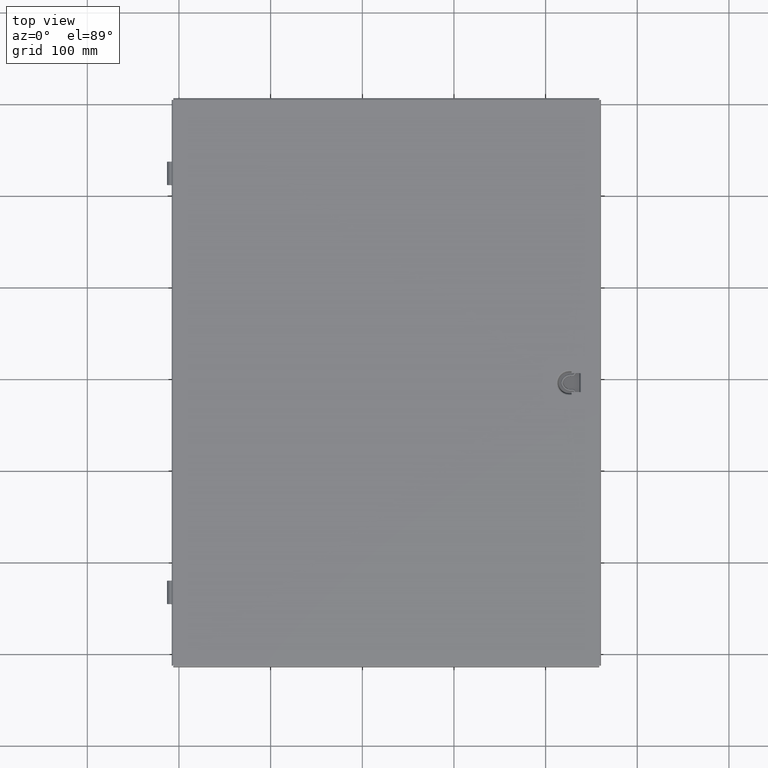
[diagram: clean part render]
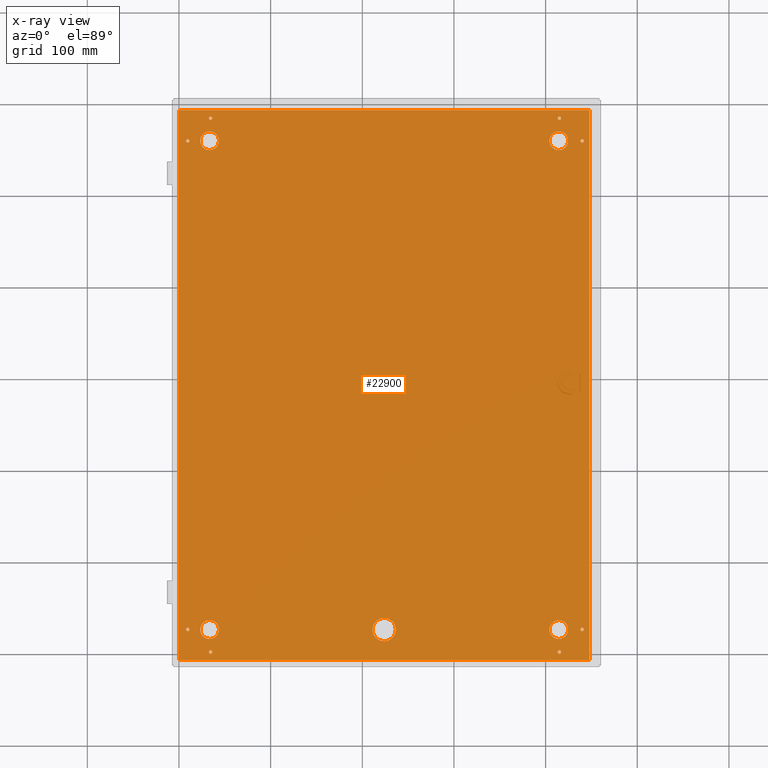
[diagram: x-ray — body ghosted, one internal face saturated and labeled with its STEP entity id]
A machine part, top view, then the same camera in x-ray: the body is ghosted and one INTERNAL B-rep face — a face not visible from any outside direction — is saturated and labeled: STEP entity #22900.
In plain terms, the highlighted planar face has unit normal (0, 0, -1).
Its self-contained STEP definition (entity closure, byte-faithful):
#300=LINE($,#32220,#2680);
#301=LINE($,#32222,#2681);
#302=LINE($,#32224,#2682);
#303=LINE($,#32225,#2683);
#2680=VECTOR($,#26112,17.625);
#2681=VECTOR($,#26113,23.625);
#2682=VECTOR($,#26114,17.625);
#2683=VECTOR($,#26115,23.625);
#5386=FACE_BOUND($,#6981,.T.);
#5387=FACE_BOUND($,#6982,.T.);
#5388=FACE_BOUND($,#6983,.T.);
#5389=FACE_BOUND($,#6984,.T.);
#5390=FACE_BOUND($,#6985,.T.);
#5391=FACE_BOUND($,#6986,.T.);
#5392=FACE_BOUND($,#6987,.T.);
#5393=FACE_BOUND($,#6988,.T.);
#5394=FACE_BOUND($,#6989,.T.);
#5395=FACE_BOUND($,#6990,.T.);
#5396=FACE_BOUND($,#6991,.T.);
#5397=FACE_BOUND($,#6992,.T.);
#5398=FACE_BOUND($,#6993,.T.);
#5399=FACE_BOUND($,#6994,.T.);
#6981=EDGE_LOOP($,(#14168));
#6982=EDGE_LOOP($,(#14169));
#6983=EDGE_LOOP($,(#14170,#14171,#14172,#14173));
#6984=EDGE_LOOP($,(#14174));
#6985=EDGE_LOOP($,(#14175));
#6986=EDGE_LOOP($,(#14176));
#6987=EDGE_LOOP($,(#14177));
#6988=EDGE_LOOP($,(#14178));
#6989=EDGE_LOOP($,(#14179));
#6990=EDGE_LOOP($,(#14180));
#6991=EDGE_LOOP($,(#14181));
#6992=EDGE_LOOP($,(#14182));
#6993=EDGE_LOOP($,(#14183));
#6994=EDGE_LOOP($,(#14184));
#8521=CIRCLE($,#24237,0.5);
#8528=CIRCLE($,#24250,0.401999999999999);
#8529=CIRCLE($,#24251,0.401999999999999);
#8530=CIRCLE($,#24252,0.402);
#8531=CIRCLE($,#24253,0.402);
#8532=CIRCLE($,#24254,0.0748154845165101);
#8533=CIRCLE($,#24255,0.0748154845165101);
#8534=CIRCLE($,#24256,0.0748154845165101);
#8535=CIRCLE($,#24257,0.0748154845165101);
#8536=CIRCLE($,#24258,0.0748154845165101);
#8537=CIRCLE($,#24259,0.0748154845165101);
#8538=CIRCLE($,#24260,0.0748154845165101);
#8539=CIRCLE($,#24261,0.0748154845165101);
#9072=VERTEX_POINT($,#32164);
#9079=VERTEX_POINT($,#32214);
#9080=VERTEX_POINT($,#32216);
#9081=VERTEX_POINT($,#32218);
#9082=VERTEX_POINT($,#32219);
#9083=VERTEX_POINT($,#32221);
#9084=VERTEX_POINT($,#32223);
#9085=VERTEX_POINT($,#32226);
#9086=VERTEX_POINT($,#32228);
#9087=VERTEX_POINT($,#32230);
#9088=VERTEX_POINT($,#32232);
#9089=VERTEX_POINT($,#32234);
#9090=VERTEX_POINT($,#32236);
#9091=VERTEX_POINT($,#32238);
#9092=VERTEX_POINT($,#32240);
#9093=VERTEX_POINT($,#32242);
#9094=VERTEX_POINT($,#32244);
#11050=EDGE_CURVE($,#9072,#9072,#8521,.T.);
#11058=EDGE_CURVE($,#9079,#9079,#8528,.T.);
#11059=EDGE_CURVE($,#9080,#9080,#8529,.T.);
#11060=EDGE_CURVE($,#9081,#9082,#300,.T.);
#11061=EDGE_CURVE($,#9083,#9081,#301,.T.);
#11062=EDGE_CURVE($,#9084,#9083,#302,.T.);
#11063=EDGE_CURVE($,#9082,#9084,#303,.T.);
#11064=EDGE_CURVE($,#9085,#9085,#8530,.T.);
#11065=EDGE_CURVE($,#9086,#9086,#8531,.T.);
#11066=EDGE_CURVE($,#9087,#9087,#8532,.T.);
#11067=EDGE_CURVE($,#9088,#9088,#8533,.T.);
#11068=EDGE_CURVE($,#9089,#9089,#8534,.T.);
#11069=EDGE_CURVE($,#9090,#9090,#8535,.T.);
#11070=EDGE_CURVE($,#9091,#9091,#8536,.T.);
#11071=EDGE_CURVE($,#9092,#9092,#8537,.T.);
#11072=EDGE_CURVE($,#9093,#9093,#8538,.T.);
#11073=EDGE_CURVE($,#9094,#9094,#8539,.T.);
#14168=ORIENTED_EDGE($,*,*,#11058,.F.);
#14169=ORIENTED_EDGE($,*,*,#11059,.F.);
#14170=ORIENTED_EDGE($,*,*,#11060,.F.);
#14171=ORIENTED_EDGE($,*,*,#11061,.F.);
#14172=ORIENTED_EDGE($,*,*,#11062,.F.);
#14173=ORIENTED_EDGE($,*,*,#11063,.F.);
#14174=ORIENTED_EDGE($,*,*,#11064,.F.);
#14175=ORIENTED_EDGE($,*,*,#11065,.F.);
#14176=ORIENTED_EDGE($,*,*,#11066,.T.);
#14177=ORIENTED_EDGE($,*,*,#11067,.T.);
#14178=ORIENTED_EDGE($,*,*,#11068,.T.);
#14179=ORIENTED_EDGE($,*,*,#11069,.T.);
#14180=ORIENTED_EDGE($,*,*,#11070,.T.);
#14181=ORIENTED_EDGE($,*,*,#11071,.T.);
#14182=ORIENTED_EDGE($,*,*,#11072,.T.);
#14183=ORIENTED_EDGE($,*,*,#11073,.T.);
#14184=ORIENTED_EDGE($,*,*,#11050,.F.);
#20729=PLANE($,#24249);
#22900=ADVANCED_FACE($,(#5386,#5387,#5388,#5389,#5390,#5391,#5392,#5393,
#5394,#5395,#5396,#5397,#5398,#5399),#20729,.F.);
#24237=AXIS2_PLACEMENT_3D($,#32165,#26082,#26083);
#24249=AXIS2_PLACEMENT_3D($,#32213,#26106,#26107);
#24250=AXIS2_PLACEMENT_3D($,#32215,#26108,#26109);
#24251=AXIS2_PLACEMENT_3D($,#32217,#26110,#26111);
#24252=AXIS2_PLACEMENT_3D($,#32227,#26116,#26117);
#24253=AXIS2_PLACEMENT_3D($,#32229,#26118,#26119);
#24254=AXIS2_PLACEMENT_3D($,#32231,#26120,#26121);
#24255=AXIS2_PLACEMENT_3D($,#32233,#26122,#26123);
#24256=AXIS2_PLACEMENT_3D($,#32235,#26124,#26125);
#24257=AXIS2_PLACEMENT_3D($,#32237,#26126,#26127);
#24258=AXIS2_PLACEMENT_3D($,#32239,#26128,#26129);
#24259=AXIS2_PLACEMENT_3D($,#32241,#26130,#26131);
#24260=AXIS2_PLACEMENT_3D($,#32243,#26132,#26133);
#24261=AXIS2_PLACEMENT_3D($,#32245,#26134,#26135);
#26082=DIRECTION('center_axis',(7.67614542079046E-017,3.06161699786838E-017,
-1.));
#26083=DIRECTION('ref_axis',(1.,0.,7.67614542079046E-017));
#26106=DIRECTION('center_axis',(0.,0.,1.));
#26107=DIRECTION('ref_axis',(1.,0.,0.));
#26108=DIRECTION('center_axis',(1.07057564838338E-032,-3.06161699786838E-017,
-1.));
#26109=DIRECTION('ref_axis',(-1.,0.,-1.07057564838338E-032));
#26110=DIRECTION('center_axis',(1.07057564838338E-032,-3.06161699786838E-017,
-1.));
#26111=DIRECTION('ref_axis',(-1.,0.,-1.07057564838338E-032));
#26112=DIRECTION($,(1.,0.,0.));
#26113=DIRECTION($,(3.06161699786838E-016,-1.,0.));
#26114=DIRECTION($,(-1.,-1.58718430951047E-016,0.));
#26115=DIRECTION($,(-2.36817976339658E-016,1.,0.));
#26116=DIRECTION('center_axis',(1.53522908415809E-016,-3.06161699786838E-017,
-1.));
#26117=DIRECTION('ref_axis',(-1.,0.,-1.53522908415809E-016));
#26118=DIRECTION('center_axis',(1.07057564838338E-032,-3.06161699786838E-017,
-1.));
#26119=DIRECTION('ref_axis',(-1.,0.,-1.07057564838338E-032));
#26120=DIRECTION('center_axis',(0.,0.,1.));
#26121=DIRECTION('ref_axis',(0.,-1.,0.));
#26122=DIRECTION('center_axis',(0.,0.,1.));
#26123=DIRECTION('ref_axis',(0.,-1.,0.));
#26124=DIRECTION('center_axis',(0.,0.,1.));
#26125=DIRECTION('ref_axis',(0.,-1.,0.));
#26126=DIRECTION('center_axis',(0.,0.,1.));
#26127=DIRECTION('ref_axis',(0.,-1.,0.));
#26128=DIRECTION('center_axis',(0.,0.,1.));
#26129=DIRECTION('ref_axis',(0.,-1.,0.));
#26130=DIRECTION('center_axis',(0.,0.,1.));
#26131=DIRECTION('ref_axis',(0.,-1.,0.));
#26132=DIRECTION('center_axis',(0.,0.,1.));
#26133=DIRECTION('ref_axis',(0.,-1.,0.));
#26134=DIRECTION('center_axis',(0.,0.,1.));
#26135=DIRECTION('ref_axis',(0.,-1.,0.));
#32164=CARTESIAN_POINT('',(8.31249999999999,22.3125,0.));
#32165=CARTESIAN_POINT('Origin',(8.81249999999999,22.3125,3.16894367265055E-016));
#32213=CARTESIAN_POINT('Origin',(8.8125,11.8125,0.));
#32214=CARTESIAN_POINT('',(15.9105,1.3125,0.));
#32215=CARTESIAN_POINT('Origin',(16.3125,1.3125,3.27821759239712E-016));
#32216=CARTESIAN_POINT('',(15.9105,22.3125,0.));
#32217=CARTESIAN_POINT('Origin',(16.3125,22.3125,-3.27821759239712E-016));
#32218=CARTESIAN_POINT('',(0.,0.,0.));
#32219=CARTESIAN_POINT('',(17.625,0.,0.));
#32220=CARTESIAN_POINT($,(0.,0.,0.));
#32221=CARTESIAN_POINT('',(-7.23307015746405E-015,23.625,0.));
#32222=CARTESIAN_POINT($,(-7.23307015746405E-015,23.625,0.));
#32223=CARTESIAN_POINT('',(17.625,23.625,0.));
#32224=CARTESIAN_POINT($,(17.625,23.625,0.));
#32225=CARTESIAN_POINT($,(17.625,0.,0.));
#32226=CARTESIAN_POINT('',(0.910499999999993,22.3125,0.));
#32227=CARTESIAN_POINT('Origin',(1.31249999999999,22.3125,-1.46427052460405E-015));
#32228=CARTESIAN_POINT('',(0.910499999999992,1.3125,0.));
#32229=CARTESIAN_POINT('Origin',(1.31249999999999,1.3125,3.27821759239712E-016));
#32230=CARTESIAN_POINT('',(1.35500869539255,23.3498154845165,0.));
#32231=CARTESIAN_POINT('Origin',(1.35500869539255,23.275,0.));
#32232=CARTESIAN_POINT('',(0.380008695392552,22.3798154845165,0.));
#32233=CARTESIAN_POINT('Origin',(0.380008695392552,22.305,0.));
#32234=CARTESIAN_POINT('',(16.3400086953926,23.3498154845165,0.));
#32235=CARTESIAN_POINT('Origin',(16.3400086953926,23.275,0.));
#32236=CARTESIAN_POINT('',(17.3150086953925,22.3798154845165,0.));
#32237=CARTESIAN_POINT('Origin',(17.3150086953925,22.305,0.));
#32238=CARTESIAN_POINT('',(17.3150086953925,1.39481548451651,0.));
#32239=CARTESIAN_POINT('Origin',(17.3150086953925,1.32,0.));
#32240=CARTESIAN_POINT('',(16.3400086953926,0.41981548451651,0.));
#32241=CARTESIAN_POINT('Origin',(16.3400086953926,0.345,0.));
#32242=CARTESIAN_POINT('',(1.35500869539256,0.41981548451651,0.));
#32243=CARTESIAN_POINT('Origin',(1.35500869539256,0.345,0.));
#32244=CARTESIAN_POINT('',(0.380008695392557,1.39481548451651,0.));
#32245=CARTESIAN_POINT('Origin',(0.380008695392557,1.32,0.));